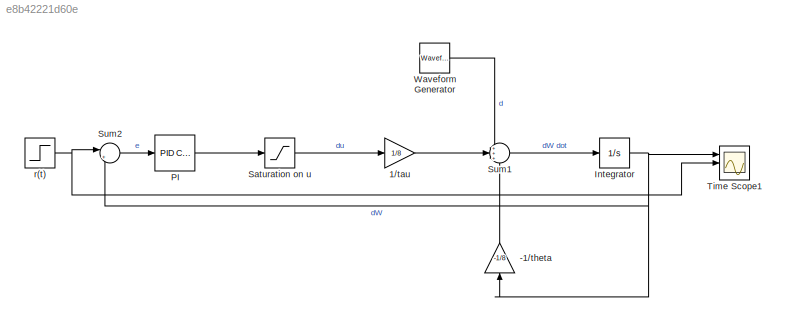
MODEL slx_e8b42221d60e
KIND model
CONFIG AbsTol = auto
CONFIG EnableMultiTasking = off
CONFIG FixedStep = auto
CONFIG MaxStep = auto
CONFIG MinStep = auto
CONFIG RelTol = 1e-3
CONFIG SampleTimeConstraint = Unconstrained
CONFIG SolverName = VariableStepAuto
CONFIG StartTime = 0.0
CONFIG StopTime = 70
BLOCK [Gain] -1//theta
  Gain = -1/8
  NameLocation = left
BLOCK [Gain] 1//tau
  Gain = 1/8
BLOCK [Integrator] Integrator
  Ports = [1, 1]
BLOCK [Reference] PI  REF=pid_lib/PID Controller
  Ports = [1, 1]
  SourceBlock = pid_lib/PID Controller
  SourceProductBaseCode = SL
  SourceType = PID 1dof
BLOCK [Saturate] Saturation on u
  Commented = through
  LowerLimit = -.25
  UpperLimit = .75
BLOCK [Sum] Sum1
  Inputs = +++
  Ports = [3, 1]
BLOCK [Sum] Sum2
  Inputs = |+-
  Ports = [2, 1]
BLOCK [Scope] Time Scope1
  DefaultConfigurationName = spbscopes.TimeScopeBlockCfg
  Floating = off
  NumInputPorts = 3
  Ports = [3]
  ScopeSpecificationString = spbscopes.TimeScopeBlockCfg('CurrentConfiguration', extmgr.ConfigurationSet(extmgr.Configuration('Core','General UI',true),extmgr.Configuration('Core','Source UI',true),extmgr.Configuration('Sources','WiredSimulink',true),extmgr.Configuration('Visuals','Time Domain',true,'DisplayPropertyDefaults',struct('MinYLimReal','-0.13682','MaxYLimReal','1.23141','YLabelReal','Amplitude','MinYLimMag','0.00000...<+1418ch>
  UserDataPersistent = on
BLOCK [Reference] Waveform Generator  REF=simulink/Sources/Waveform
Generator
  Commented = on
  Ports = [0, 1]
  SourceBlock = simulink/Sources/Waveform\nGenerator
  SourceProductBaseCode = SL
  SourceType = WaveformGenerator
BLOCK [Step] r(t)
  SampleTime = 0
LINE -1//theta:1 -> Sum1:3
LINE 1//tau:1 -> Sum1:2
NET Integrator:1 -> -1//theta:1, Sum2:2, Time Scope1:1
LINE PI:1 -> Saturation on u:1
LINE Saturation on u:1 -> 1//tau:1
LINE Sum1:1 -> Integrator:1
LINE Sum2:1 -> PI:1
LINE Waveform Generator:1 -> Sum1:1
NET r(t):1 -> Sum2:1, Time Scope1:2
note: NET lines group one-source signal fan-out (src -> all destinations, sorted); 1:1 wires keep LINE
